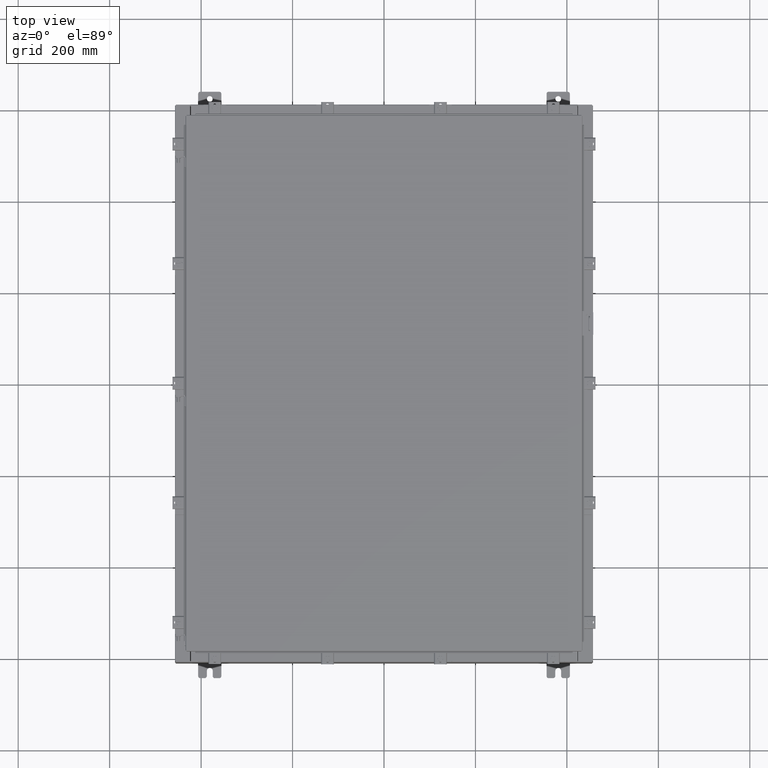
[diagram: clean part render]
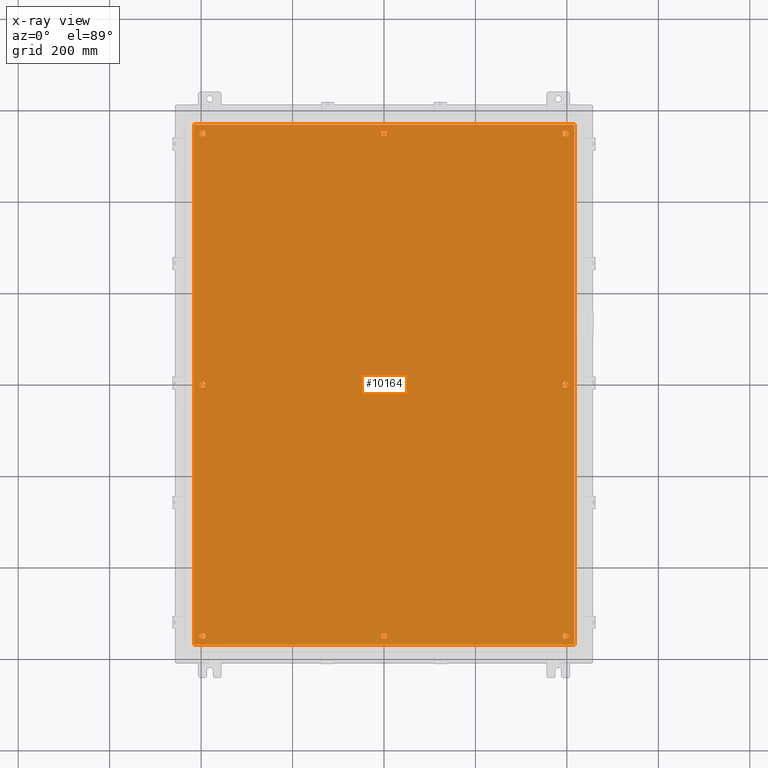
[diagram: x-ray — body ghosted, one internal face saturated and labeled with its STEP entity id]
A machine part, top view, then the same camera in x-ray: the body is ghosted and one INTERNAL B-rep face — a face not visible from any outside direction — is saturated and labeled: STEP entity #10164.
In plain terms, the highlighted planar face has unit normal (0, 0, -1).
Its self-contained STEP definition (entity closure, byte-faithful):
#16 = CARTESIAN_POINT ( 'NONE',  ( -15.37500000000000500, -21.62500000000000400, -0.1039999999999999800 ) ) ;
#455 = DIRECTION ( 'NONE',  ( -0.0000000000000000000, -0.0000000000000000000, 1.000000000000000000 ) ) ;
#566 = CARTESIAN_POINT ( 'NONE',  ( 15.37500000000000500, 21.62500000000000400, -0.1039999999999999800 ) ) ;
#880 = DIRECTION ( 'NONE',  ( 1.000000000000000000, -0.0000000000000000000, -0.0000000000000000000 ) ) ;
#991 = ORIENTED_EDGE ( 'NONE', *, *, #4935, .F. ) ;
#1005 = ORIENTED_EDGE ( 'NONE', *, *, #15717, .T. ) ;
#1100 = LINE ( 'NONE', #9802, #11601 ) ;
#1133 = ORIENTED_EDGE ( 'NONE', *, *, #26680, .T. ) ;
#1151 = VERTEX_POINT ( 'NONE', #10005 ) ;
#1195 = DIRECTION ( 'NONE',  ( -1.000000000000000000, 0.0000000000000000000, 0.0000000000000000000 ) ) ;
#1387 = DIRECTION ( 'NONE',  ( -1.000000000000000000, 0.0000000000000000000, 0.0000000000000000000 ) ) ;
#1639 = CARTESIAN_POINT ( 'NONE',  ( 16.50000000000000700, 22.38300000000000300, -0.1040000000000009400 ) ) ;
#1715 = AXIS2_PLACEMENT_3D ( 'NONE', #22337, #9722, #24450 ) ;
#1873 = EDGE_LOOP ( 'NONE', ( #25730, #18186 ) ) ;
#1956 = DIRECTION ( 'NONE',  ( -0.0000000000000000000, -0.0000000000000000000, 1.000000000000000000 ) ) ;
#2063 = DIRECTION ( 'NONE',  ( -1.000000000000000000, 0.0000000000000000000, 0.0000000000000000000 ) ) ;
#2639 = DIRECTION ( 'NONE',  ( -0.0000000000000000000, -0.0000000000000000000, 1.000000000000000000 ) ) ;
#2693 = LINE ( 'NONE', #21841, #23721 ) ;
#2774 = EDGE_CURVE ( 'NONE', #26056, #17907, #3376, .T. ) ;
#2828 = DIRECTION ( 'NONE',  ( 0.0000000000000000000, -1.000000000000000000, 0.0000000000000000000 ) ) ;
#2852 = AXIS2_PLACEMENT_3D ( 'NONE', #13021, #455, #15131 ) ;
#2991 = VECTOR ( 'NONE', #880, 39.37007874015748100 ) ;
#3255 = EDGE_CURVE ( 'NONE', #14989, #1151, #10855, .T. ) ;
#3376 = CIRCLE ( 'NONE', #24986, 0.2499999999999998600 ) ;
#3385 = FACE_BOUND ( 'NONE', #1873, .T. ) ;
#3517 = CARTESIAN_POINT ( 'NONE',  ( 15.87500000000000200, -21.62500000000000400, -0.1039999999999999800 ) ) ;
#3570 = CIRCLE ( 'NONE', #4479, 0.2499999999999998600 ) ;
#3576 = EDGE_CURVE ( 'NONE', #6102, #27138, #26692, .T. ) ;
#3652 = CARTESIAN_POINT ( 'NONE',  ( 0.0000000000000000000, 0.0000000000000000000, -0.1039999999999999800 ) ) ;
#3748 = CARTESIAN_POINT ( 'NONE',  ( -15.87500000000000200, -21.62500000000000400, -0.1039999999999999800 ) ) ;
#3985 = CIRCLE ( 'NONE', #18013, 0.2499999999999987000 ) ;
#4278 = CIRCLE ( 'NONE', #11812, 0.2500000000000008900 ) ;
#4479 = AXIS2_PLACEMENT_3D ( 'NONE', #15229, #2639, #17379 ) ;
#4492 = ORIENTED_EDGE ( 'NONE', *, *, #22741, .F. ) ;
#4868 = CARTESIAN_POINT ( 'NONE',  ( -16.38299999999999600, 22.38300000000000300, -0.1040000000000009100 ) ) ;
#4935 = EDGE_CURVE ( 'NONE', #8966, #12693, #24961, .T. ) ;
#5034 = VECTOR ( 'NONE', #20681, 39.37007874015748100 ) ;
#5305 = AXIS2_PLACEMENT_3D ( 'NONE', #27265, #14661, #2063 ) ;
#5379 = CIRCLE ( 'NONE', #21179, 0.2500000000000008900 ) ;
#6102 = VERTEX_POINT ( 'NONE', #14023 ) ;
#6139 = ORIENTED_EDGE ( 'NONE', *, *, #19590, .T. ) ;
#6460 = EDGE_LOOP ( 'NONE', ( #17264, #19811 ) ) ;
#6656 = VERTEX_POINT ( 'NONE', #3748 ) ;
#7214 = AXIS2_PLACEMENT_3D ( 'NONE', #9315, #24031, #11429 ) ;
#7377 = ORIENTED_EDGE ( 'NONE', *, *, #23026, .T. ) ;
#7576 = VERTEX_POINT ( 'NONE', #566 ) ;
#7749 = ORIENTED_EDGE ( 'NONE', *, *, #18775, .T. ) ;
#7766 = CARTESIAN_POINT ( 'NONE',  ( 15.37500000000000500, -21.62500000000000400, -0.1039999999999999800 ) ) ;
#7767 = EDGE_CURVE ( 'NONE', #9196, #21103, #12116, .T. ) ;
#7839 = DIRECTION ( 'NONE',  ( -1.000000000000000000, 0.0000000000000000000, -0.0000000000000000000 ) ) ;
#7982 = DIRECTION ( 'NONE',  ( -0.0000000000000000000, -0.0000000000000000000, 1.000000000000000000 ) ) ;
#8263 = FACE_OUTER_BOUND ( 'NONE', #20186, .T. ) ;
#8274 = CIRCLE ( 'NONE', #2852, 0.2499999999999987000 ) ;
#8473 = DIRECTION ( 'NONE',  ( -0.0000000000000000000, -0.0000000000000000000, 1.000000000000000000 ) ) ;
#8622 = CARTESIAN_POINT ( 'NONE',  ( -15.62500000000000500, 21.62500000000000400, -0.1039999999999999800 ) ) ;
#8771 = EDGE_LOOP ( 'NONE', ( #14693, #7377 ) ) ;
#8840 = DIRECTION ( 'NONE',  ( -0.0000000000000000000, -0.0000000000000000000, 1.000000000000000000 ) ) ;
#8908 = FACE_BOUND ( 'NONE', #8771, .T. ) ;
#8966 = VERTEX_POINT ( 'NONE', #27259 ) ;
#8989 = AXIS2_PLACEMENT_3D ( 'NONE', #11486, #26249, #13618 ) ;
#9196 = VERTEX_POINT ( 'NONE', #19608 ) ;
#9233 = CARTESIAN_POINT ( 'NONE',  ( 15.37500000000000000, 3.027752532102204900E-015, -0.1039999999999999800 ) ) ;
#9315 = CARTESIAN_POINT ( 'NONE',  ( -15.62500000000000400, -21.62500000000000400, -0.1039999999999999800 ) ) ;
#9614 = VERTEX_POINT ( 'NONE', #16560 ) ;
#9722 = DIRECTION ( 'NONE',  ( -0.0000000000000000000, -0.0000000000000000000, 1.000000000000000000 ) ) ;
#9802 = CARTESIAN_POINT ( 'NONE',  ( 16.38300000000000600, -22.38300000000000300, -0.1040000000000009100 ) ) ;
#9856 = ORIENTED_EDGE ( 'NONE', *, *, #2774, .T. ) ;
#10005 = CARTESIAN_POINT ( 'NONE',  ( -0.2500000000000011700, -21.62500000000000400, -0.1039999999999999800 ) ) ;
#10096 = CARTESIAN_POINT ( 'NONE',  ( -15.62500000000000500, 21.62500000000000400, -0.1039999999999999800 ) ) ;
#10139 = DIRECTION ( 'NONE',  ( -0.0000000000000000000, -0.0000000000000000000, 1.000000000000000000 ) ) ;
#10164 = ADVANCED_FACE ( 'NONE', ( #26414, #25731, #14533, #8908, #3385, #25074, #19470, #13855, #8263 ), #26732, .T. ) ;
#10175 = AXIS2_PLACEMENT_3D ( 'NONE', #3652, #20473, #7839 ) ;
#10296 = DIRECTION ( 'NONE',  ( -0.0000000000000000000, -0.0000000000000000000, 1.000000000000000000 ) ) ;
#10363 = VERTEX_POINT ( 'NONE', #24117 ) ;
#10461 = CARTESIAN_POINT ( 'NONE',  ( 0.2500000000000011700, -21.62500000000000400, -0.1039999999999999800 ) ) ;
#10741 = DIRECTION ( 'NONE',  ( -1.000000000000000000, 0.0000000000000000000, 0.0000000000000000000 ) ) ;
#10855 = CIRCLE ( 'NONE', #23052, 0.2500000000000011700 ) ;
#10918 = ORIENTED_EDGE ( 'NONE', *, *, #25567, .F. ) ;
#11211 = EDGE_LOOP ( 'NONE', ( #18199, #1133 ) ) ;
#11321 = EDGE_CURVE ( 'NONE', #25449, #19937, #3985, .T. ) ;
#11426 = ORIENTED_EDGE ( 'NONE', *, *, #26632, .F. ) ;
#11429 = DIRECTION ( 'NONE',  ( -1.000000000000000000, 0.0000000000000000000, 0.0000000000000000000 ) ) ;
#11486 = CARTESIAN_POINT ( 'NONE',  ( 0.0000000000000000000, -21.62500000000000400, -0.1039999999999999800 ) ) ;
#11508 = CARTESIAN_POINT ( 'NONE',  ( -0.2499999999999998600, 21.62500000000000400, -0.1039999999999999800 ) ) ;
#11601 = VECTOR ( 'NONE', #26672, 39.37007874015748100 ) ;
#11812 = AXIS2_PLACEMENT_3D ( 'NONE', #22756, #10139, #24887 ) ;
#11865 = CIRCLE ( 'NONE', #8989, 0.2500000000000011700 ) ;
#11915 = VERTEX_POINT ( 'NONE', #23574 ) ;
#12116 = CIRCLE ( 'NONE', #1715, 0.2500000000000008900 ) ;
#12193 = DIRECTION ( 'NONE',  ( -1.000000000000000000, 0.0000000000000000000, 0.0000000000000000000 ) ) ;
#12693 = VERTEX_POINT ( 'NONE', #26014 ) ;
#13021 = CARTESIAN_POINT ( 'NONE',  ( 15.62500000000000400, -21.62500000000000400, -0.1039999999999999800 ) ) ;
#13049 = AXIS2_PLACEMENT_3D ( 'NONE', #8622, #23336, #10741 ) ;
#13618 = DIRECTION ( 'NONE',  ( -1.000000000000000000, 0.0000000000000000000, 0.0000000000000000000 ) ) ;
#13732 = DIRECTION ( 'NONE',  ( -0.0000000000000000000, -0.0000000000000000000, 1.000000000000000000 ) ) ;
#13855 = FACE_BOUND ( 'NONE', #25175, .T. ) ;
#13917 = ORIENTED_EDGE ( 'NONE', *, *, #22849, .T. ) ;
#13961 = DIRECTION ( 'NONE',  ( -0.0000000000000000000, -0.0000000000000000000, 1.000000000000000000 ) ) ;
#14023 = CARTESIAN_POINT ( 'NONE',  ( -15.37500000000000000, -8.298848852119578500E-016, -0.1039999999999999800 ) ) ;
#14521 = CARTESIAN_POINT ( 'NONE',  ( 15.62500000000000400, 21.62500000000000400, -0.1039999999999999800 ) ) ;
#14526 = VERTEX_POINT ( 'NONE', #4868 ) ;
#14533 = FACE_BOUND ( 'NONE', #16820, .T. ) ;
#14661 = DIRECTION ( 'NONE',  ( -0.0000000000000000000, -0.0000000000000000000, 1.000000000000000000 ) ) ;
#14693 = ORIENTED_EDGE ( 'NONE', *, *, #3576, .T. ) ;
#14947 = EDGE_CURVE ( 'NONE', #9614, #7576, #17917, .T. ) ;
#14989 = VERTEX_POINT ( 'NONE', #10461 ) ;
#15131 = DIRECTION ( 'NONE',  ( -1.000000000000000000, 0.0000000000000000000, 0.0000000000000000000 ) ) ;
#15229 = CARTESIAN_POINT ( 'NONE',  ( 0.0000000000000000000, 21.62500000000000400, -0.1039999999999999800 ) ) ;
#15595 = CARTESIAN_POINT ( 'NONE',  ( -16.49999999999999600, -22.38300000000000300, -0.1040000000000009400 ) ) ;
#15678 = AXIS2_PLACEMENT_3D ( 'NONE', #14521, #1956, #16699 ) ;
#15717 = EDGE_CURVE ( 'NONE', #19937, #25449, #8274, .T. ) ;
#15974 = EDGE_CURVE ( 'NONE', #7576, #9614, #20481, .T. ) ;
#16560 = CARTESIAN_POINT ( 'NONE',  ( 15.87500000000000200, 21.62500000000000400, -0.1039999999999999800 ) ) ;
#16699 = DIRECTION ( 'NONE',  ( -1.000000000000000000, 0.0000000000000000000, 0.0000000000000000000 ) ) ;
#16820 = EDGE_LOOP ( 'NONE', ( #20353, #26122 ) ) ;
#17264 = ORIENTED_EDGE ( 'NONE', *, *, #14947, .T. ) ;
#17266 = CIRCLE ( 'NONE', #19230, 0.2500000000000008900 ) ;
#17379 = DIRECTION ( 'NONE',  ( -1.000000000000000000, 0.0000000000000000000, 0.0000000000000000000 ) ) ;
#17416 = EDGE_CURVE ( 'NONE', #6656, #17475, #17786, .T. ) ;
#17475 = VERTEX_POINT ( 'NONE', #16 ) ;
#17786 = CIRCLE ( 'NONE', #5305, 0.2499999999999987000 ) ;
#17839 = EDGE_CURVE ( 'NONE', #21103, #9196, #4278, .T. ) ;
#17907 = VERTEX_POINT ( 'NONE', #24956 ) ;
#17917 = CIRCLE ( 'NONE', #15678, 0.2499999999999987000 ) ;
#18013 = AXIS2_PLACEMENT_3D ( 'NONE', #21108, #8473, #23236 ) ;
#18186 = ORIENTED_EDGE ( 'NONE', *, *, #17416, .T. ) ;
#18199 = ORIENTED_EDGE ( 'NONE', *, *, #3255, .T. ) ;
#18775 = EDGE_CURVE ( 'NONE', #10363, #22739, #22004, .T. ) ;
#18837 = CIRCLE ( 'NONE', #7214, 0.2499999999999987000 ) ;
#19230 = AXIS2_PLACEMENT_3D ( 'NONE', #21502, #8840, #23606 ) ;
#19470 = FACE_BOUND ( 'NONE', #6460, .T. ) ;
#19590 = EDGE_CURVE ( 'NONE', #17907, #26056, #3570, .T. ) ;
#19608 = CARTESIAN_POINT ( 'NONE',  ( 15.87500000000000200, 2.997136362123521200E-015, -0.1039999999999999800 ) ) ;
#19811 = ORIENTED_EDGE ( 'NONE', *, *, #15974, .T. ) ;
#19937 = VERTEX_POINT ( 'NONE', #7766 ) ;
#20186 = EDGE_LOOP ( 'NONE', ( #991, #11426, #10918, #4492 ) ) ;
#20353 = ORIENTED_EDGE ( 'NONE', *, *, #7767, .T. ) ;
#20473 = DIRECTION ( 'NONE',  ( 0.0000000000000000000, 0.0000000000000000000, -1.000000000000000000 ) ) ;
#20481 = CIRCLE ( 'NONE', #23957, 0.2499999999999987000 ) ;
#20618 = CARTESIAN_POINT ( 'NONE',  ( 0.0000000000000000000, -21.62500000000000400, -0.1039999999999999800 ) ) ;
#20681 = DIRECTION ( 'NONE',  ( -1.000000000000000000, -0.0000000000000000000, -0.0000000000000000000 ) ) ;
#21103 = VERTEX_POINT ( 'NONE', #9233 ) ;
#21108 = CARTESIAN_POINT ( 'NONE',  ( 15.62500000000000400, -21.62500000000000400, -0.1039999999999999800 ) ) ;
#21157 = CARTESIAN_POINT ( 'NONE',  ( -15.87500000000000200, -7.992687152332741600E-016, -0.1039999999999999800 ) ) ;
#21179 = AXIS2_PLACEMENT_3D ( 'NONE', #10096, #24827, #12193 ) ;
#21502 = CARTESIAN_POINT ( 'NONE',  ( -15.62500000000000200, -8.298848852119578500E-016, -0.1039999999999999800 ) ) ;
#21831 = LINE ( 'NONE', #1639, #5034 ) ;
#21841 = CARTESIAN_POINT ( 'NONE',  ( -16.38299999999999600, 22.38300000000000300, -0.1040000000000009100 ) ) ;
#22004 = CIRCLE ( 'NONE', #13049, 0.2500000000000008900 ) ;
#22090 = ORIENTED_EDGE ( 'NONE', *, *, #11321, .T. ) ;
#22337 = CARTESIAN_POINT ( 'NONE',  ( 15.62500000000000200, 2.997136362123521200E-015, -0.1039999999999999800 ) ) ;
#22681 = DIRECTION ( 'NONE',  ( -1.000000000000000000, 0.0000000000000000000, 0.0000000000000000000 ) ) ;
#22739 = VERTEX_POINT ( 'NONE', #24568 ) ;
#22741 = EDGE_CURVE ( 'NONE', #12693, #11915, #1100, .T. ) ;
#22756 = CARTESIAN_POINT ( 'NONE',  ( 15.62500000000000200, 2.997136362123521200E-015, -0.1039999999999999800 ) ) ;
#22849 = EDGE_CURVE ( 'NONE', #22739, #10363, #5379, .T. ) ;
#22920 = CARTESIAN_POINT ( 'NONE',  ( 0.0000000000000000000, 21.62500000000000400, -0.1039999999999999800 ) ) ;
#23026 = EDGE_CURVE ( 'NONE', #27138, #6102, #17266, .T. ) ;
#23052 = AXIS2_PLACEMENT_3D ( 'NONE', #20618, #7982, #22681 ) ;
#23236 = DIRECTION ( 'NONE',  ( -1.000000000000000000, 0.0000000000000000000, 0.0000000000000000000 ) ) ;
#23336 = DIRECTION ( 'NONE',  ( -0.0000000000000000000, -0.0000000000000000000, 1.000000000000000000 ) ) ;
#23503 = EDGE_LOOP ( 'NONE', ( #6139, #9856 ) ) ;
#23574 = CARTESIAN_POINT ( 'NONE',  ( 16.38300000000000600, 22.38300000000000300, -0.1040000000000009100 ) ) ;
#23606 = DIRECTION ( 'NONE',  ( -1.000000000000000000, 0.0000000000000000000, 0.0000000000000000000 ) ) ;
#23721 = VECTOR ( 'NONE', #2828, 39.37007874015748100 ) ;
#23952 = AXIS2_PLACEMENT_3D ( 'NONE', #26599, #13961, #1387 ) ;
#23957 = AXIS2_PLACEMENT_3D ( 'NONE', #26374, #13732, #1195 ) ;
#24031 = DIRECTION ( 'NONE',  ( -0.0000000000000000000, -0.0000000000000000000, 1.000000000000000000 ) ) ;
#24117 = CARTESIAN_POINT ( 'NONE',  ( -15.87500000000000700, 21.62500000000000400, -0.1039999999999999800 ) ) ;
#24440 = EDGE_LOOP ( 'NONE', ( #22090, #1005 ) ) ;
#24450 = DIRECTION ( 'NONE',  ( -1.000000000000000000, 0.0000000000000000000, 0.0000000000000000000 ) ) ;
#24568 = CARTESIAN_POINT ( 'NONE',  ( -15.37500000000000500, 21.62500000000000400, -0.1039999999999999800 ) ) ;
#24827 = DIRECTION ( 'NONE',  ( -0.0000000000000000000, -0.0000000000000000000, 1.000000000000000000 ) ) ;
#24887 = DIRECTION ( 'NONE',  ( -1.000000000000000000, 0.0000000000000000000, 0.0000000000000000000 ) ) ;
#24956 = CARTESIAN_POINT ( 'NONE',  ( 0.2499999999999998600, 21.62500000000000400, -0.1039999999999999800 ) ) ;
#24961 = LINE ( 'NONE', #15595, #2991 ) ;
#24986 = AXIS2_PLACEMENT_3D ( 'NONE', #22920, #10296, #25001 ) ;
#25001 = DIRECTION ( 'NONE',  ( -1.000000000000000000, 0.0000000000000000000, 0.0000000000000000000 ) ) ;
#25074 = FACE_BOUND ( 'NONE', #24440, .T. ) ;
#25175 = EDGE_LOOP ( 'NONE', ( #13917, #7749 ) ) ;
#25449 = VERTEX_POINT ( 'NONE', #3517 ) ;
#25567 = EDGE_CURVE ( 'NONE', #11915, #14526, #21831, .T. ) ;
#25730 = ORIENTED_EDGE ( 'NONE', *, *, #25986, .T. ) ;
#25731 = FACE_BOUND ( 'NONE', #23503, .T. ) ;
#25986 = EDGE_CURVE ( 'NONE', #17475, #6656, #18837, .T. ) ;
#26014 = CARTESIAN_POINT ( 'NONE',  ( 16.38300000000000600, -22.38300000000000300, -0.1040000000000009100 ) ) ;
#26056 = VERTEX_POINT ( 'NONE', #11508 ) ;
#26122 = ORIENTED_EDGE ( 'NONE', *, *, #17839, .T. ) ;
#26249 = DIRECTION ( 'NONE',  ( -0.0000000000000000000, -0.0000000000000000000, 1.000000000000000000 ) ) ;
#26374 = CARTESIAN_POINT ( 'NONE',  ( 15.62500000000000400, 21.62500000000000400, -0.1039999999999999800 ) ) ;
#26414 = FACE_BOUND ( 'NONE', #11211, .T. ) ;
#26599 = CARTESIAN_POINT ( 'NONE',  ( -15.62500000000000200, -8.298848852119578500E-016, -0.1039999999999999800 ) ) ;
#26632 = EDGE_CURVE ( 'NONE', #14526, #8966, #2693, .T. ) ;
#26672 = DIRECTION ( 'NONE',  ( 0.0000000000000000000, 1.000000000000000000, 0.0000000000000000000 ) ) ;
#26680 = EDGE_CURVE ( 'NONE', #1151, #14989, #11865, .T. ) ;
#26692 = CIRCLE ( 'NONE', #23952, 0.2500000000000008900 ) ;
#26732 = PLANE ( 'NONE',  #10175 ) ;
#27138 = VERTEX_POINT ( 'NONE', #21157 ) ;
#27259 = CARTESIAN_POINT ( 'NONE',  ( -16.38299999999999600, -22.38300000000000300, -0.1040000000000009400 ) ) ;
#27265 = CARTESIAN_POINT ( 'NONE',  ( -15.62500000000000400, -21.62500000000000400, -0.1039999999999999800 ) ) ;